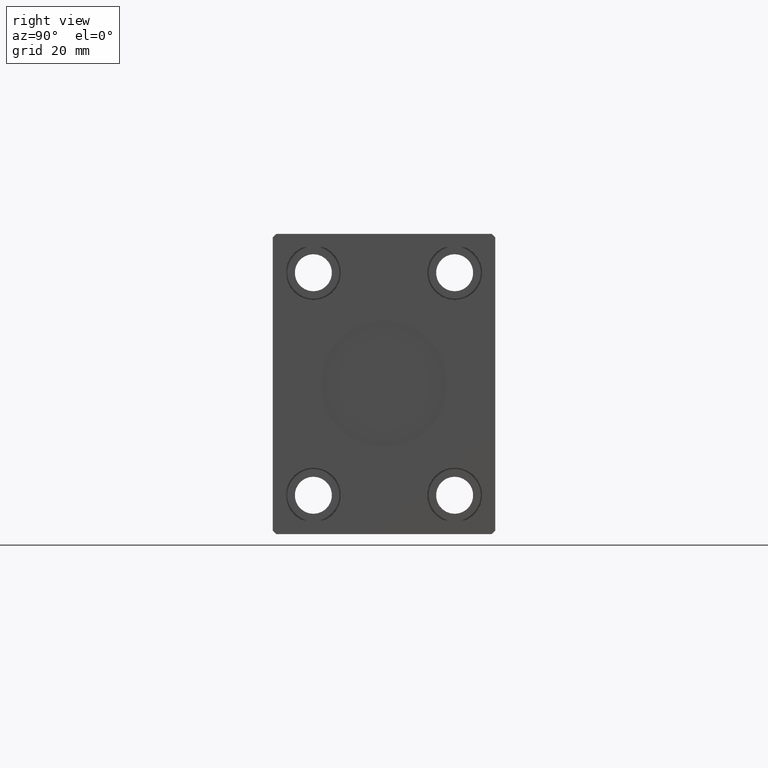
[diagram: clean part render]
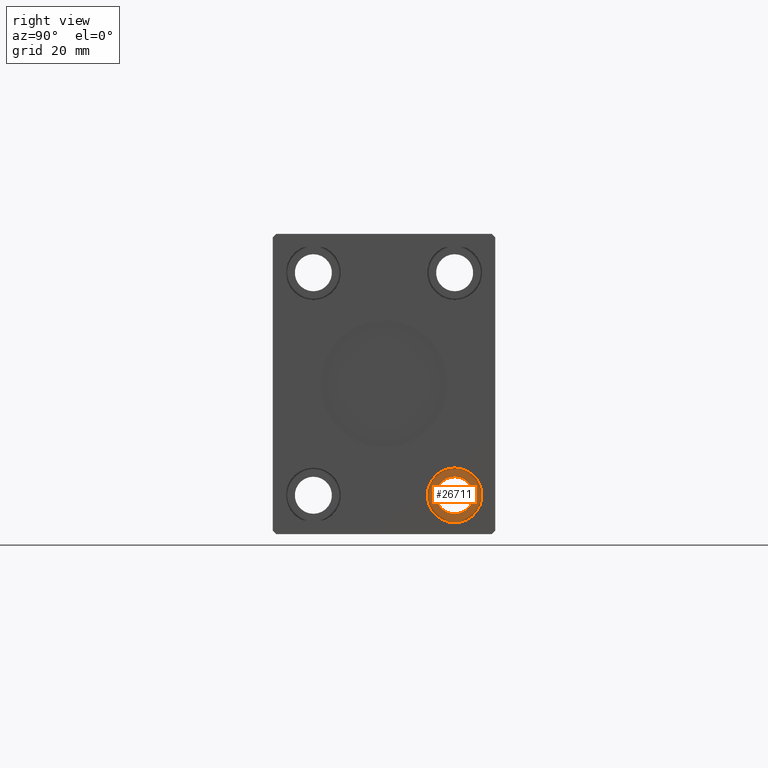
[diagram: same view with one face highlighted and labeled with its STEP entity id]
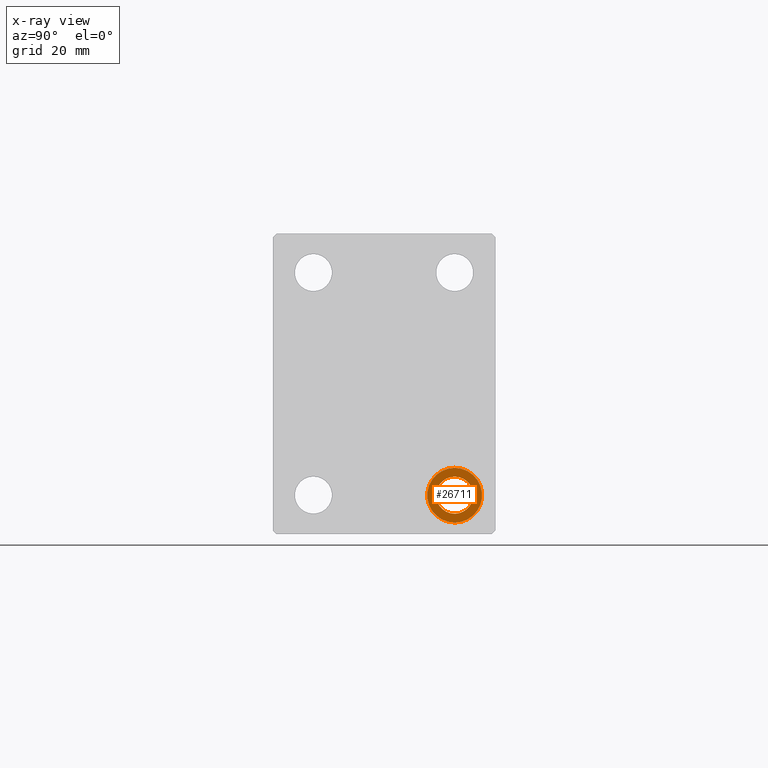
[diagram: x-ray of the same camera — body ghosted, the highlighted face saturated]
A machine part, right view. The second image highlights one B-rep face of the part: STEP entity #26711.
The next image is the same camera in x-ray: the body ghosted, the highlighted face saturated — about 0% of this face is hidden behind the body in this view.
In plain terms, the highlighted planar face has unit normal (1, 0, 0).
Its self-contained STEP definition (entity closure, byte-faithful):
#66 = CIRCLE ( 'NONE', #7234, 5.249999999999997335 ) ;
#608 = ORIENTED_EDGE ( 'NONE', *, *, #39099, .F. ) ;
#3802 = EDGE_LOOP ( 'NONE', ( #15737, #608 ) ) ;
#7234 = AXIS2_PLACEMENT_3D ( 'NONE', #9269, #36727, #30612 ) ;
#8235 = CARTESIAN_POINT ( 'NONE',  ( 140.6699999999999875, 20.00000000000000355, -39.24999999999998579 ) ) ;
#8309 = DIRECTION ( 'NONE',  ( -1.000000000000000000, -0.000000000000000000, -0.000000000000000000 ) ) ;
#8455 = CIRCLE ( 'NONE', #21396, 7.750000000000000000 ) ;
#8779 = DIRECTION ( 'NONE',  ( 0.000000000000000000, 0.000000000000000000, -1.000000000000000000 ) ) ;
#9269 = CARTESIAN_POINT ( 'NONE',  ( 140.6699999999999875, 20.00000000000000355, -31.49999999999998579 ) ) ;
#11253 = ORIENTED_EDGE ( 'NONE', *, *, #32303, .F. ) ;
#13353 = AXIS2_PLACEMENT_3D ( 'NONE', #30036, #36356, #19026 ) ;
#15737 = ORIENTED_EDGE ( 'NONE', *, *, #39291, .F. ) ;
#16904 = ORIENTED_EDGE ( 'NONE', *, *, #30873, .F. ) ;
#19026 = DIRECTION ( 'NONE',  ( 0.000000000000000000, 0.000000000000000000, 1.000000000000000000 ) ) ;
#21396 = AXIS2_PLACEMENT_3D ( 'NONE', #31871, #42228, #40118 ) ;
#21628 = AXIS2_PLACEMENT_3D ( 'NONE', #32837, #29691, #8779 ) ;
#21963 = FACE_BOUND ( 'NONE', #3802, .T. ) ;
#25106 = CARTESIAN_POINT ( 'NONE',  ( 140.6699999999999875, 20.00000000000000355, -26.24999999999998579 ) ) ;
#26711 = ADVANCED_FACE ( 'NONE', ( #21963, #32750 ), #33404, .T. ) ;
#29559 = CARTESIAN_POINT ( 'NONE',  ( 140.6699999999999875, 20.00000000000000355, -23.74999999999998579 ) ) ;
#29691 = DIRECTION ( 'NONE',  ( 1.000000000000000000, 0.000000000000000000, 0.000000000000000000 ) ) ;
#30036 = CARTESIAN_POINT ( 'NONE',  ( 140.6699999999999875, 20.00000000000000355, -31.49999999999998579 ) ) ;
#30612 = DIRECTION ( 'NONE',  ( 0.000000000000000000, 0.000000000000000000, -1.000000000000000000 ) ) ;
#30873 = EDGE_CURVE ( 'NONE', #42666, #42204, #8455, .T. ) ;
#31476 = AXIS2_PLACEMENT_3D ( 'NONE', #33039, #8309, #42734 ) ;
#31871 = CARTESIAN_POINT ( 'NONE',  ( 140.6699999999999875, 20.00000000000000355, -31.49999999999998579 ) ) ;
#32220 = CARTESIAN_POINT ( 'NONE',  ( 140.6699999999999875, 20.00000000000000355, -36.74999999999998579 ) ) ;
#32303 = EDGE_CURVE ( 'NONE', #42204, #42666, #42978, .T. ) ;
#32750 = FACE_OUTER_BOUND ( 'NONE', #39626, .T. ) ;
#32837 = CARTESIAN_POINT ( 'NONE',  ( 140.6699999999999875, 20.00000000000000355, -31.49999999999998579 ) ) ;
#33039 = CARTESIAN_POINT ( 'NONE',  ( 140.6699999999999875, 20.00000000000000355, -31.49999999999998579 ) ) ;
#33404 = PLANE ( 'NONE',  #13353 ) ;
#36356 = DIRECTION ( 'NONE',  ( 1.000000000000000000, 0.000000000000000000, -0.000000000000000000 ) ) ;
#36727 = DIRECTION ( 'NONE',  ( 1.000000000000000000, 0.000000000000000000, 0.000000000000000000 ) ) ;
#37581 = VERTEX_POINT ( 'NONE', #25106 ) ;
#39099 = EDGE_CURVE ( 'NONE', #43557, #37581, #66, .T. ) ;
#39291 = EDGE_CURVE ( 'NONE', #37581, #43557, #41019, .T. ) ;
#39626 = EDGE_LOOP ( 'NONE', ( #11253, #16904 ) ) ;
#40118 = DIRECTION ( 'NONE',  ( 0.000000000000000000, 0.000000000000000000, 1.000000000000000000 ) ) ;
#41019 = CIRCLE ( 'NONE', #21628, 5.249999999999997335 ) ;
#42204 = VERTEX_POINT ( 'NONE', #8235 ) ;
#42228 = DIRECTION ( 'NONE',  ( -1.000000000000000000, -0.000000000000000000, -0.000000000000000000 ) ) ;
#42666 = VERTEX_POINT ( 'NONE', #29559 ) ;
#42734 = DIRECTION ( 'NONE',  ( 0.000000000000000000, 0.000000000000000000, 1.000000000000000000 ) ) ;
#42978 = CIRCLE ( 'NONE', #31476, 7.750000000000000000 ) ;
#43557 = VERTEX_POINT ( 'NONE', #32220 ) ;